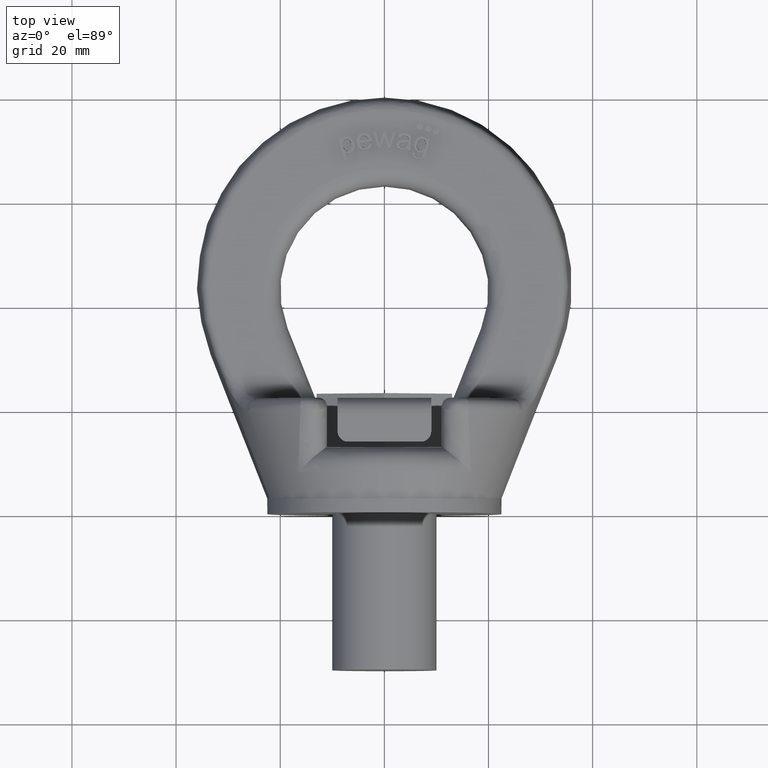
[diagram: clean part render]
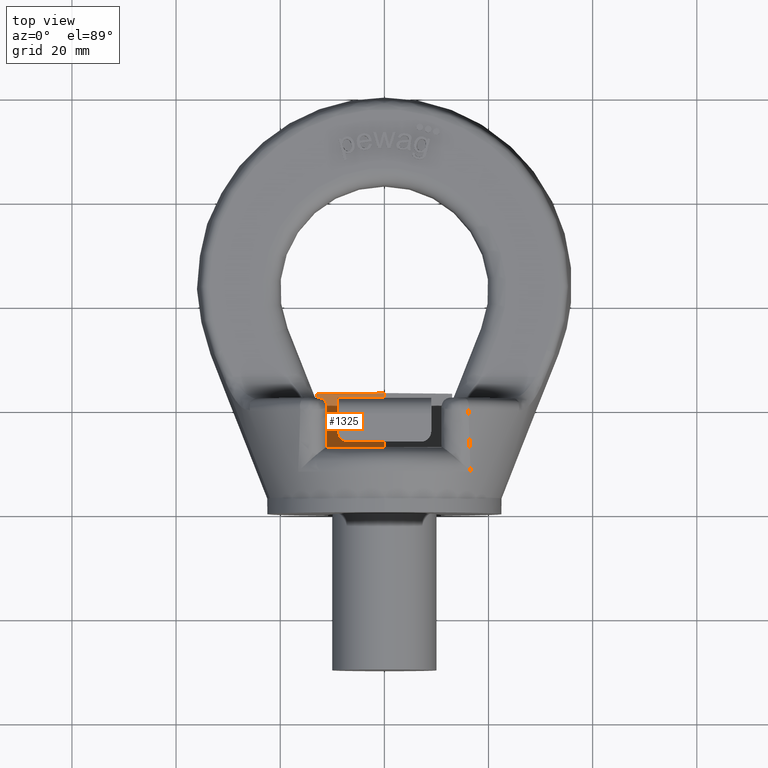
[diagram: same view with one face highlighted and labeled with its STEP entity id]
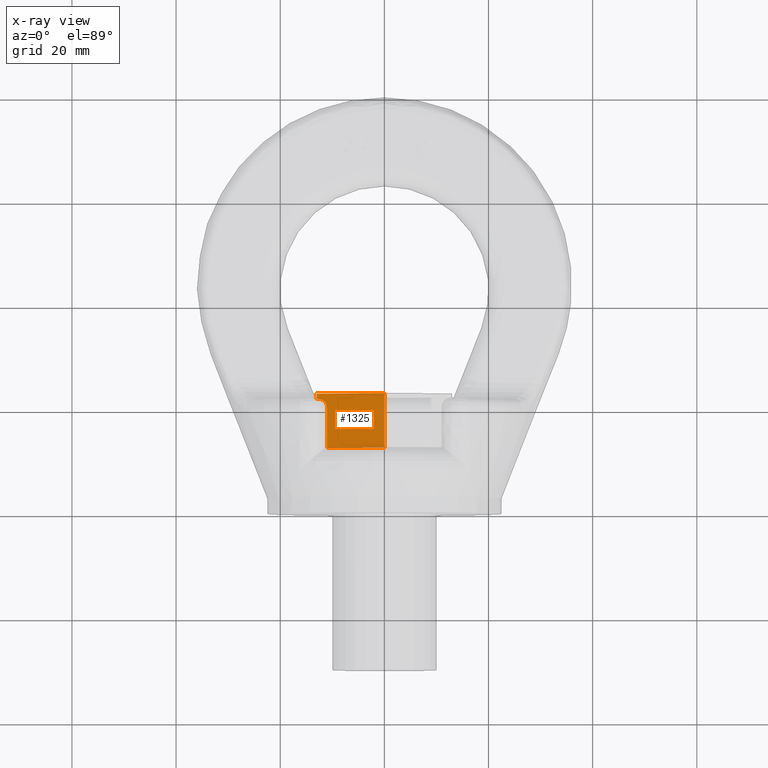
[diagram: x-ray of the same camera — body ghosted, the highlighted face saturated]
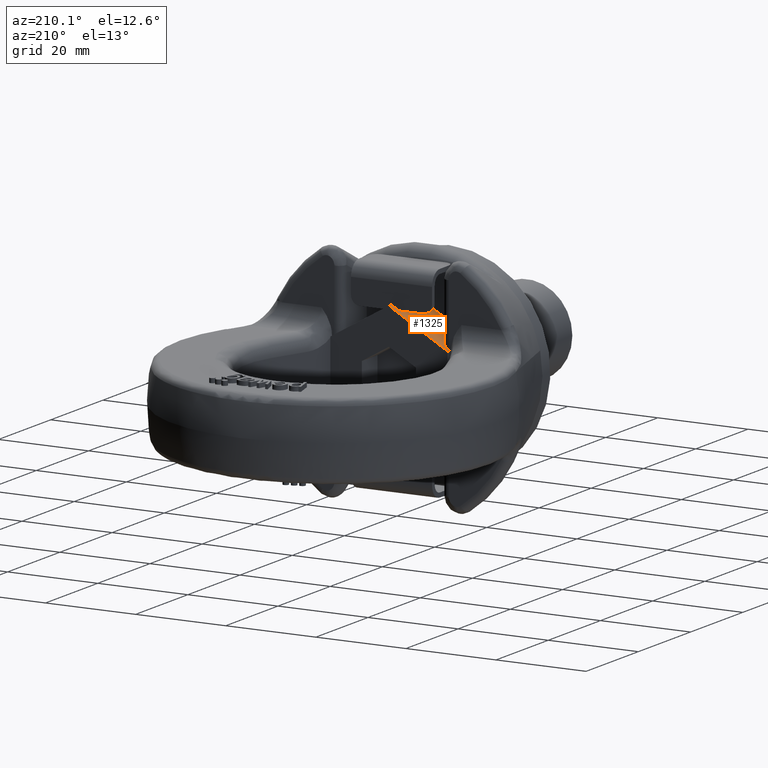
[diagram: same view with one face highlighted and labeled with its STEP entity id]
A machine part, top view. The second image highlights one B-rep face of the part: STEP entity #1325.
The next image is the same camera in x-ray: the body ghosted, the highlighted face saturated — about 0% of this face is hidden behind the body in this view.
A second angle (auxiliary view) of the same face is appended — the face is thin or edge-on in the first view.
In plain terms, the highlighted planar face has unit normal (0.5, 0, -0.866).
Its self-contained STEP definition (entity closure, byte-faithful):
#1049=ELLIPSE('',#5163,1.96299091524472,1.7);
#1102=FACE_OUTER_BOUND('',#1840,.T.);
#1325=ADVANCED_FACE('',(#1102),#1560,.F.);
#1560=PLANE('',#5164);
#1840=EDGE_LOOP('',(#2866,#2867,#2868,#2869,#2870,#2871,#2872));
#2117=LINE('',#6538,#2397);
#2126=LINE('',#6580,#2406);
#2133=LINE('',#6631,#2413);
#2138=LINE('',#6662,#2418);
#2157=LINE('',#6888,#2437);
#2158=LINE('',#6891,#2438);
#2397=VECTOR('',#5427,1.);
#2406=VECTOR('',#5438,1.);
#2413=VECTOR('',#5451,1.);
#2418=VECTOR('',#5460,1.);
#2437=VECTOR('',#5545,1.);
#2438=VECTOR('',#5550,1.);
#2866=ORIENTED_EDGE('',*,*,#4333,.F.);
#2867=ORIENTED_EDGE('',*,*,#4413,.T.);
#2868=ORIENTED_EDGE('',*,*,#4345,.F.);
#2869=ORIENTED_EDGE('',*,*,#4354,.F.);
#2870=ORIENTED_EDGE('',*,*,#4412,.T.);
#2871=ORIENTED_EDGE('',*,*,#4323,.T.);
#2872=ORIENTED_EDGE('',*,*,#4414,.F.);
#3935=VERTEX_POINT('',#6537);
#3936=VERTEX_POINT('',#6539);
#3945=VERTEX_POINT('',#6579);
#3946=VERTEX_POINT('',#6581);
#3957=VERTEX_POINT('',#6632);
#3958=VERTEX_POINT('',#6633);
#3965=VERTEX_POINT('',#6661);
#4323=EDGE_CURVE('',#3936,#3935,#2117,.T.);
#4333=EDGE_CURVE('',#3945,#3946,#2126,.T.);
#4345=EDGE_CURVE('',#3957,#3958,#2133,.T.);
#4354=EDGE_CURVE('',#3965,#3957,#2138,.T.);
#4412=EDGE_CURVE('',#3965,#3936,#2157,.T.);
#4413=EDGE_CURVE('',#3945,#3958,#1049,.T.);
#4414=EDGE_CURVE('',#3946,#3935,#2158,.T.);
#5163=AXIS2_PLACEMENT_3D('',#6890,#5548,#5549);
#5164=AXIS2_PLACEMENT_3D('',#6892,#5551,#5552);
#5427=DIRECTION('',(-0.866025403784441,0.,-0.499999999999995));
#5438=DIRECTION('',(-0.866025403784442,0.,-0.499999999999995));
#5451=DIRECTION('',(1.82602471155453E-16,1.,1.05425585876291E-16));
#5460=DIRECTION('',(-0.866025403784442,-1.36574054430651E-16,-0.499999999999995));
#5545=DIRECTION('',(0.,1.,0.));
#5548=DIRECTION('',(0.499999999999995,0.,-0.866025403784442));
#5549=DIRECTION('',(0.866025403784442,0.,0.499999999999995));
#5550=DIRECTION('',(0.,1.,0.));
#5551=DIRECTION('',(0.499999999999995,0.,-0.866025403784442));
#5552=DIRECTION('',(-0.866025403784442,0.,-0.499999999999995));
#6537=CARTESIAN_POINT('',(-13.,23.,7.50555349946516));
#6538=CARTESIAN_POINT('',(0.,23.,15.0111069989302));
#6539=CARTESIAN_POINT('',(0.,23.,15.0111069989302));
#6579=CARTESIAN_POINT('',(-12.7,22.,7.67875858022204));
#6580=CARTESIAN_POINT('',(0.745074675714372,22.,15.4412760635202));
#6581=CARTESIAN_POINT('',(-13.,22.,7.50555349946516));
#6631=CARTESIAN_POINT('',(-11.,22.,8.6602540378444));
#6632=CARTESIAN_POINT('',(-11.,12.5,8.66025403784439));
#6633=CARTESIAN_POINT('',(-11.,20.3,8.6602540378444));
#6661=CARTESIAN_POINT('',(0.,12.5,15.0111069989302));
#6662=CARTESIAN_POINT('',(2.3973029949318,12.5,16.3951905283831));
#6888=CARTESIAN_POINT('',(0.,1.,15.0111069989302));
#6890=CARTESIAN_POINT('',(-12.7,20.3,7.67875858022204));
#6891=CARTESIAN_POINT('',(-13.,1.,7.50555349946516));
#6892=CARTESIAN_POINT('',(0.,1.,15.0111069989302));